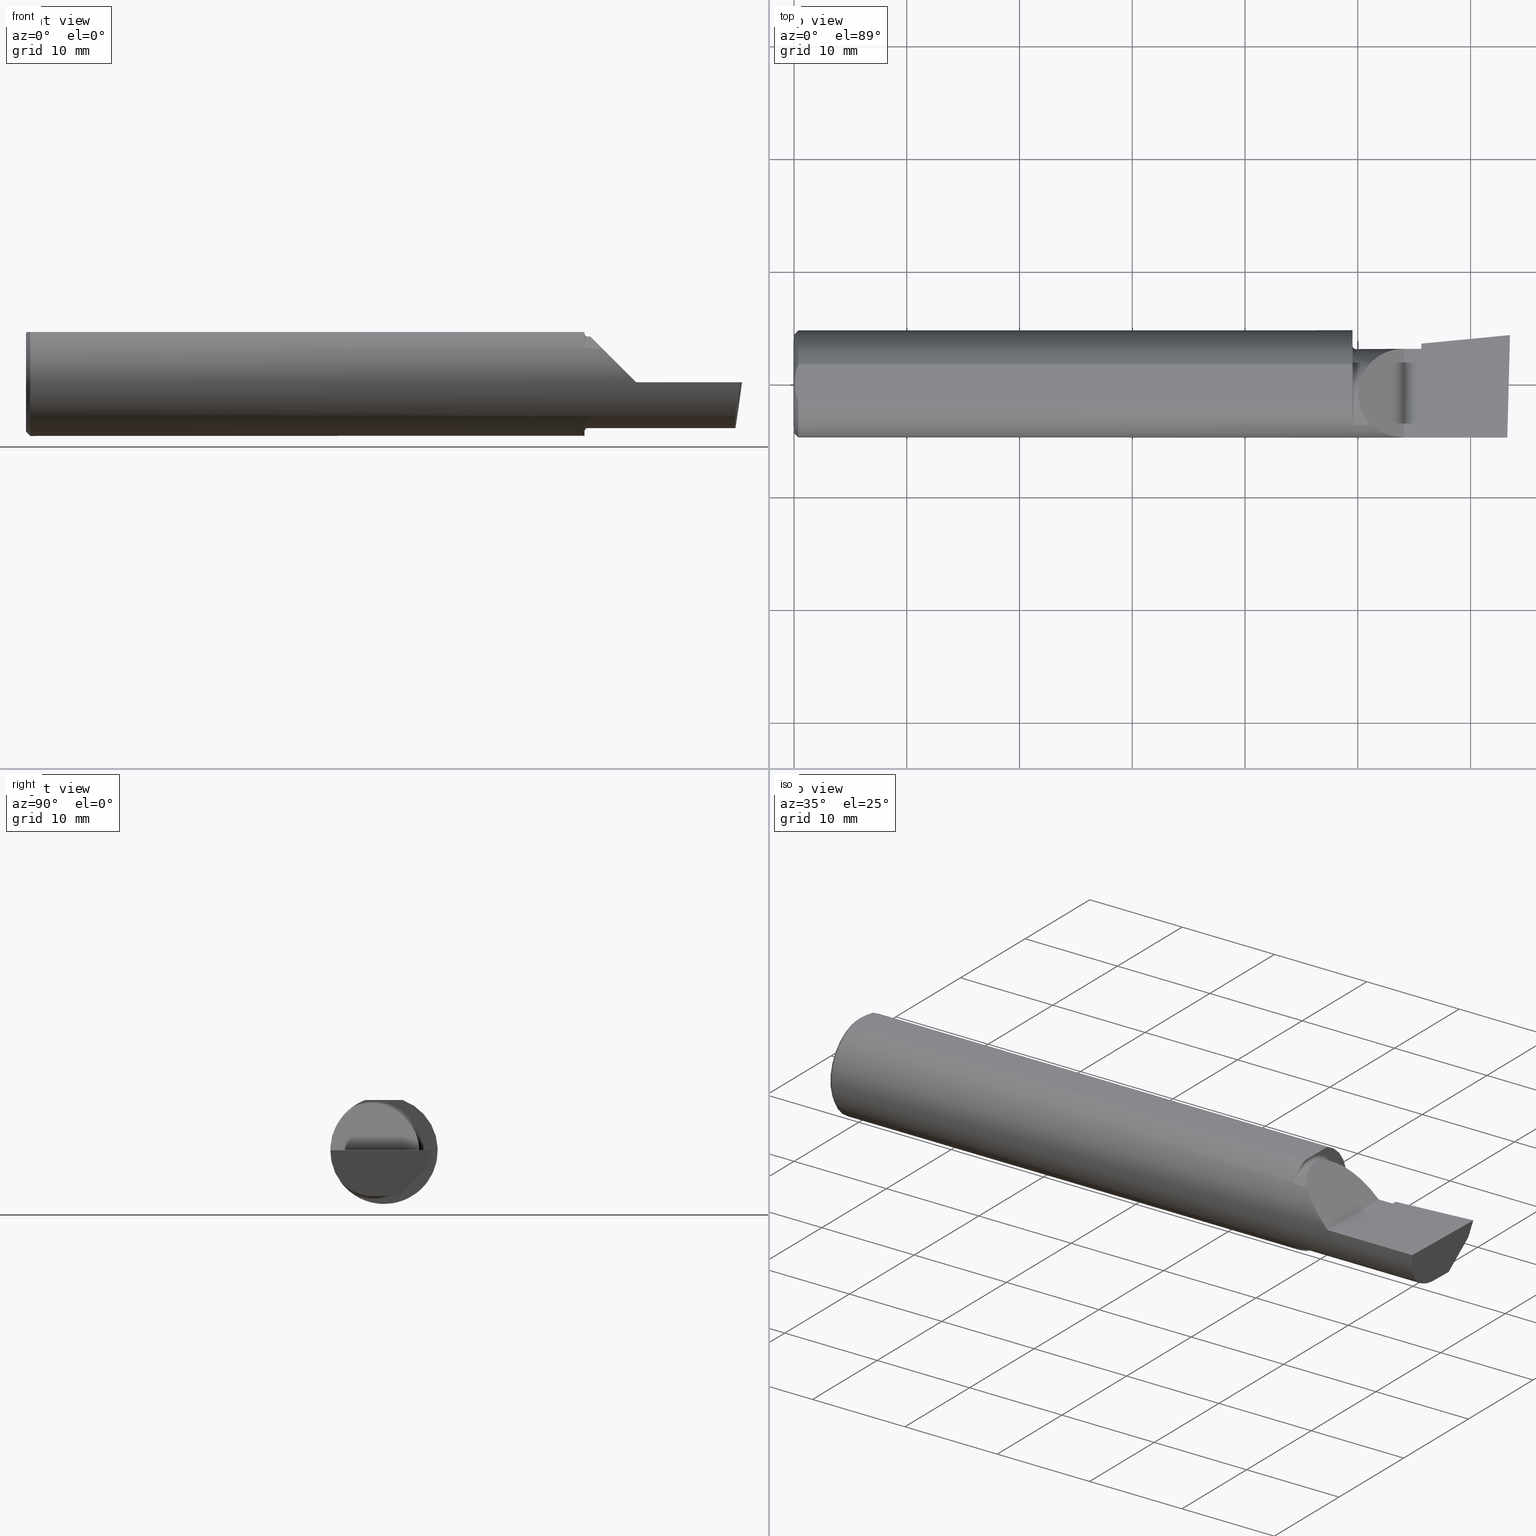
[diagram: canonical four-view strip — front | top / right | iso, engineering-drawing reading convention]
A machine part, canonical four-view strip (front | top / right | iso — engineering-drawing reading convention). The complete STEP part file that produces these views, byte-faithful:
ISO-10303-21;
HEADER;
FILE_DESCRIPTION (( 'STEP AP203' ),
    '1' );
FILE_NAME ('217546-B360500.STEP',
    '2024-04-26T22:36:43',
    ( '' ),
    ( '' ),
    'SwSTEP 2.0',
    'SolidWorks 2022',
    '' );
FILE_SCHEMA (( 'CONFIG_CONTROL_DESIGN' ));
ENDSEC;

DATA;
#1 = LINE ( 'NONE', #406, #442 ) ;
#2 = EDGE_CURVE ( 'NONE', #441, #163, #179, .T. ) ;
#3 = ORIENTED_EDGE ( 'NONE', *, *, #236, .F. ) ;
#4 = DIRECTION ( 'NONE',  ( -1.000000000000000000, 6.829619984160658046E-18, -0.000000000000000000 ) ) ;
#5 = CARTESIAN_POINT ( 'NONE',  ( 1.956674049009441196, -0.1431412424162808172, 0.1208797671938522250 ) ) ;
#6 = ORIENTED_EDGE ( 'NONE', *, *, #377, .F. ) ;
#7 = CARTESIAN_POINT ( 'NONE',  ( 2.480648201915109929, -0.1728409665178088084, -0.08432347972837160588 ) ) ;
#8 = EDGE_CURVE ( 'NONE', #611, #407, #512, .T. ) ;
#9 = VECTOR ( 'NONE', #414, 39.37007874015748143 ) ;
#10 = CARTESIAN_POINT ( 'NONE',  ( 1.949999999999999956, -0.1013606951871662831, -0.1575627873933891920 ) ) ;
#11 = COORDINATED_UNIVERSAL_TIME_OFFSET ( 8, 0, .BEHIND. ) ;
#12 = FACE_OUTER_BOUND ( 'NONE', #310, .T. ) ;
#13 = B_SPLINE_CURVE_WITH_KNOTS ( 'NONE', 3,
 ( #14, #109, #63, #590, #550, #113 ),
 .UNSPECIFIED., .F., .F.,
 ( 4, 2, 4 ),
 ( 0.003480013901590607410, 0.004330767971208083697, 0.005181522040825559984 ),
 .UNSPECIFIED. ) ;
#14 = CARTESIAN_POINT ( 'NONE',  ( 0.003000000000000218638, 2.334609556160449697E-17, 0.1753499999999999781 ) ) ;
#15 = ORIENTED_EDGE ( 'NONE', *, *, #554, .T. ) ;
#16 = CONICAL_SURFACE ( 'NONE', #552, 0.1873499999999999888, 0.7853981633974602694 ) ;
#17 = AXIS2_PLACEMENT_3D ( 'NONE', #87, #518, #274 ) ;
#18 = CARTESIAN_POINT ( 'NONE',  ( 1.959999999999999964, -0.1454917112299468074, -0.1180346748349050262 ) ) ;
#19 = VERTEX_POINT ( 'NONE', #82 ) ;
#20 = CARTESIAN_POINT ( 'NONE',  ( 0.000000000000000000, -0.06597272163553657975, 0.1753499999999999781 ) ) ;
#21 = PRODUCT_DEFINITION_SHAPE ( 'NONE', 'NONE',  #371 ) ;
#22 = CARTESIAN_POINT ( 'NONE',  ( 2.491169618080469217, 0.05430702260361122691, -0.1600499999999999701 ) ) ;
#23 = DIRECTION ( 'NONE',  ( 1.000000000000000000, -6.829619984160658046E-18, 0.000000000000000000 ) ) ;
#24 = CARTESIAN_POINT ( 'NONE',  ( 2.488992440003207296, -0.2497117568972554158, 6.943408617627042702E-17 ) ) ;
#25 = VECTOR ( 'NONE', #75, 39.37007874015748854 ) ;
#26 = VECTOR ( 'NONE', #321, 39.37007874015748143 ) ;
#27 = CARTESIAN_POINT ( 'NONE',  ( 2.190000000000000391, -0.2500000000000000555, 1.003418815229743348E-16 ) ) ;
#28 = LINE ( 'NONE', #22, #25 ) ;
#29 = FACE_OUTER_BOUND ( 'NONE', #42, .T. ) ;
#30 = DIRECTION ( 'NONE',  ( 0.000000000000000000, 0.000000000000000000, 1.000000000000000000 ) ) ;
#31 = EDGE_LOOP ( 'NONE', ( #238, #564, #476, #458, #3, #97 ) ) ;
#32 =( BOUNDED_CURVE ( )  B_SPLINE_CURVE ( 3, ( #594, #7, #56, #157 ),
 .UNSPECIFIED., .F., .T. ) 
 B_SPLINE_CURVE_WITH_KNOTS ( ( 4, 4 ),
 ( 0.6791649766273023525, 1.360746882514499045 ),
 .UNSPECIFIED. ) 
 CURVE ( )  GEOMETRIC_REPRESENTATION_ITEM ( )  RATIONAL_B_SPLINE_CURVE ( ( 1.000000000000000000, 0.9616603987079550553, 0.9616603987079550553, 1.000000000000000000 ) ) 
 REPRESENTATION_ITEM ( '' )  );
#33 = DIRECTION ( 'NONE',  ( -1.000000000000000000, 0.000000000000000000, 1.033731667140896077E-16 ) ) ;
#34 = DIRECTION ( 'NONE',  ( -1.000000000000000000, 6.829619984160658046E-18, -0.000000000000000000 ) ) ;
#35 = VERTEX_POINT ( 'NONE', #614 ) ;
#36 = AXIS2_PLACEMENT_3D ( 'NONE', #48, #234, #291 ) ;
#37 = CARTESIAN_POINT ( 'NONE',  ( 3.377502344341257155E-32, -0.1873499999999999610, 3.267291166268304703E-16 ) ) ;
#38 = EDGE_CURVE ( 'NONE', #441, #389, #466, .T. ) ;
#39 = ORIENTED_EDGE ( 'NONE', *, *, #193, .F. ) ;
#40 = APPROVAL_DATE_TIME ( #279, #219 ) ;
#41 = CARTESIAN_POINT ( 'NONE',  ( 1.957580800664965981, -0.1442412736056273570, 0.1195608849622518677 ) ) ;
#42 = EDGE_LOOP ( 'NONE', ( #549, #306 ) ) ;
#43 = CARTESIAN_POINT ( 'NONE',  ( 2.190000000000000391, 0.1408003950587628228, 0.000000000000000000 ) ) ;
#44 = CARTESIAN_POINT ( 'NONE',  ( 1.957921033727478610, -0.1445976381173499636, 0.1191292621734211382 ) ) ;
#45 = ORIENTED_EDGE ( 'NONE', *, *, #377, .T. ) ;
#46 = DIRECTION ( 'NONE',  ( -6.829619984160658046E-18, -1.000000000000000000, 0.000000000000000000 ) ) ;
#47 = CIRCLE ( 'NONE', #411, 0.1723499999999996424 ) ;
#48 = CARTESIAN_POINT ( 'NONE',  ( 2.509953961983671267, 0.1716084575252020683, -6.829619984160658046E-17 ) ) ;
#49 = APPROVAL_PERSON_ORGANIZATION ( #250, #320, #304 ) ;
#50 = ORIENTED_EDGE ( 'NONE', *, *, #193, .T. ) ;
#51 = CARTESIAN_POINT ( 'NONE',  ( 0.003000000000000218638, 2.334609556160449697E-17, 0.1753499999999999781 ) ) ;
#52 = FACE_OUTER_BOUND ( 'NONE', #151, .T. ) ;
#53 = EDGE_CURVE ( 'NONE', #376, #611, #272, .T. ) ;
#54 = VERTEX_POINT ( 'NONE', #369 ) ;
#55 = CARTESIAN_POINT ( 'NONE',  ( 1.952152469637250753, -0.1294082664154924123, -0.1355718222394685091 ) ) ;
#56 = CARTESIAN_POINT ( 'NONE',  ( 2.485293537526806151, -0.1873500000000000998, -0.04340998088356409768 ) ) ;
#57 = MANIFOLD_SOLID_BREP ( 'Extrude7', #266 ) ;
#58 = VECTOR ( 'NONE', #366, 39.37007874015748854 ) ;
#59 = LOCAL_TIME ( 15, 36, 43.00000000000000000, #11 ) ;
#60 = ADVANCED_FACE ( 'NONE', ( #364 ), #557, .T. ) ;
#61 = EDGE_CURVE ( 'NONE', #432, #407, #422, .T. ) ;
#62 = CALENDAR_DATE ( 2024, 26, 4 ) ;
#63 = CARTESIAN_POINT ( 'NONE',  ( 0.004115035183746292881, 0.02255629470626744487, 0.1753499999999999781 ) ) ;
#64 = COORDINATED_UNIVERSAL_TIME_OFFSET ( 8, 0, .BEHIND. ) ;
#65 = LINE ( 'NONE', #400, #383 ) ;
#66 = ORIENTED_EDGE ( 'NONE', *, *, #147, .T. ) ;
#67 = DIRECTION ( 'NONE',  ( 0.000000000000000000, 1.000000000000000000, 0.000000000000000000 ) ) ;
#68 = EDGE_CURVE ( 'NONE', #567, #322, #418, .T. ) ;
#69 = EDGE_LOOP ( 'NONE', ( #367, #628, #582, #273, #419, #615, #316, #103, #467, #226 ) ) ;
#70 = AXIS2_PLACEMENT_3D ( 'NONE', #307, #562, #319 ) ;
#71 = APPROVAL_PERSON_ORGANIZATION ( #568, #219, #98 ) ;
#72 = CARTESIAN_POINT ( 'NONE',  ( 2.011965325165093965, -0.1454917112299471127, 0.1180346748349047070 ) ) ;
#73 = VERTEX_POINT ( 'NONE', #506 ) ;
#74 = DIRECTION ( 'NONE',  ( 0.1219104985253354756, 0.000000000000000000, 0.9925410975618612630 ) ) ;
#75 = DIRECTION ( 'NONE',  ( -0.9953961983671800740, -0.09584575252021031166, 0.000000000000000000 ) ) ;
#76 = DIRECTION ( 'NONE',  ( 0.000000000000000000, 1.000000000000000000, -1.438723400918613551E-16 ) ) ;
#77 = DIRECTION ( 'NONE',  ( 0.000000000000000000, -1.000000000000000000, 0.000000000000000000 ) ) ;
#78 = AXIS2_PLACEMENT_3D ( 'NONE', #541, #105, #208 ) ;
#79 = AXIS2_PLACEMENT_3D ( 'NONE', #122, #312, #74 ) ;
#80 = ADVANCED_FACE ( 'NONE', ( #609 ), #182, .F. ) ;
#81 = CARTESIAN_POINT ( 'NONE',  ( 2.190000000000000391, 0.1408003950587675135, 3.244069492476312449E-16 ) ) ;
#82 = CARTESIAN_POINT ( 'NONE',  ( 2.492127980275578469, 0.1514633278254541304, -0.05999999999999999084 ) ) ;
#83 = ORIENTED_EDGE ( 'NONE', *, *, #488, .F. ) ;
#84 = CARTESIAN_POINT ( 'NONE',  ( 2.500000000000000000, -0.2500000000000000555, 6.829619984160658046E-17 ) ) ;
#85 = CARTESIAN_POINT ( 'NONE',  ( 2.190000000000000391, 0.1039332780936034484, -0.07900565447499380278 ) ) ;
#86 = ORIENTED_EDGE ( 'NONE', *, *, #308, .T. ) ;
#87 = CARTESIAN_POINT ( 'NONE',  ( 0.000000000000000000, 0.000000000000000000, 0.000000000000000000 ) ) ;
#88 = EDGE_CURVE ( 'NONE', #19, #196, #607, .T. ) ;
#89 = CARTESIAN_POINT ( 'NONE',  ( 2.189999999999999947, -0.03740000000000000269, 0.000000000000000000 ) ) ;
#90 = ORIENTED_EDGE ( 'NONE', *, *, #469, .F. ) ;
#91 = VECTOR ( 'NONE', #294, 39.37007874015748143 ) ;
#92 = CARTESIAN_POINT ( 'NONE',  ( 1.950493306168247898, -0.1180879943980265856, 0.1458023451353280819 ) ) ;
#93 = ORIENTED_EDGE ( 'NONE', *, *, #348, .T. ) ;
#94 =( LENGTH_UNIT ( ) NAMED_UNIT ( * ) SI_UNIT ( $, .METRE. ) );
#95 = EDGE_CURVE ( 'NONE', #483, #196, #599, .T. ) ;
#96 = CARTESIAN_POINT ( 'NONE',  ( 2.045676520271627385, -0.1728409665178088639, 0.08432347972837128669 ) ) ;
#97 = ORIENTED_EDGE ( 'NONE', *, *, #546, .F. ) ;
#98 = APPROVAL_ROLE ( '' ) ;
#99 = DIRECTION ( 'NONE',  ( -1.000000000000000000, -0.000000000000000000, -0.000000000000000000 ) ) ;
#100 = ORIENTED_EDGE ( 'NONE', *, *, #489, .T. ) ;
#101 = AXIS2_PLACEMENT_3D ( 'NONE', #89, #409, #225 ) ;
#102 = CARTESIAN_POINT ( 'NONE',  ( 1.952845212421890464, -0.1330145888620364591, 0.1320338710448774322 ) ) ;
#103 = ORIENTED_EDGE ( 'NONE', *, *, #424, .F. ) ;
#104 = LINE ( 'NONE', #37, #360 ) ;
#105 = DIRECTION ( 'NONE',  ( -1.000000000000000000, -0.000000000000000000, -0.000000000000000000 ) ) ;
#106 = EDGE_CURVE ( 'NONE', #432, #455, #603, .T. ) ;
#107 = CARTESIAN_POINT ( 'NONE',  ( 1.959335809113330384, -0.1454917112299467796, -0.1180346748349050123 ) ) ;
#108 = CIRCLE ( 'NONE', #510, 0.1873499999999999888 ) ;
#109 = CARTESIAN_POINT ( 'NONE',  ( 0.003000000000000169632, 0.01127363201155560934, 0.1753499999999999781 ) ) ;
#110 = VERTEX_POINT ( 'NONE', #136 ) ;
#111 = PERSON ( 'UNSPECIFIED', 'UNSPECIFIED', 'UNSPECIFIED', ('UNSPECIFIED'), ('UNSPECIFIED'), ('UNSPECIFIED') ) ;
#112 = DATE_TIME_ROLE ( 'creation_date' ) ;
#113 = CARTESIAN_POINT ( 'NONE',  ( 0.01499999999999999424, 0.06597272163553663527, 0.1753499999999999781 ) ) ;
#114 = VERTEX_POINT ( 'NONE', #173 ) ;
#115 = FACE_OUTER_BOUND ( 'NONE', #31, .T. ) ;
#116 = EDGE_LOOP ( 'NONE', ( #50, #66, #591, #597 ) ) ;
#117 = AXIS2_PLACEMENT_3D ( 'NONE', #242, #622, #185 ) ;
#118 = TOROIDAL_SURFACE ( 'NONE', #627, 0.1700499999999998679, 0.009999999999999944697 ) ;
#119 = PRODUCT ( '217546-B360500', '217546-B360500', '', ( #135 ) ) ;
#120 = EDGE_CURVE ( 'NONE', #376, #455, #28, .T. ) ;
#121 = CC_DESIGN_DATE_AND_TIME_ASSIGNMENT ( #155, #540, ( #289 ) ) ;
#122 = CARTESIAN_POINT ( 'NONE',  ( 2.472657716785286119, -0.1026153499216721915, -0.1643501480114534230 ) ) ;
#123 = CARTESIAN_POINT ( 'NONE',  ( 0.01499999999999999424, 0.000000000000000000, -0.1873499999999999888 ) ) ;
#124 = CARTESIAN_POINT ( 'NONE',  ( 2.129999999999999893, -0.2500000000000000555, 1.065442715258197396E-16 ) ) ;
#125 = DIRECTION ( 'NONE',  ( 0.000000000000000000, -1.000000000000000000, 0.000000000000000000 ) ) ;
#126 = VERTEX_POINT ( 'NONE', #470 ) ;
#127 = CARTESIAN_POINT ( 'NONE',  ( 0.01499999999999999424, 2.294375778202566330E-17, 0.1873499999999999888 ) ) ;
#128 = CARTESIAN_POINT ( 'NONE',  ( 0.000000000000000000, 0.000000000000000000, 0.000000000000000000 ) ) ;
#129 = AXIS2_PLACEMENT_3D ( 'NONE', #388, #343, #539 ) ;
#130 = VERTEX_POINT ( 'NONE', #176 ) ;
#131 = CARTESIAN_POINT ( 'NONE',  ( 2.477223734188808368, -0.1454917112299468074, -0.1180346748349050540 ) ) ;
#132 = DIRECTION ( 'NONE',  ( -0.7071067811865513475, 0.000000000000000000, 0.7071067811865436870 ) ) ;
#133 = ORIENTED_EDGE ( 'NONE', *, *, #546, .T. ) ;
#134 = EDGE_CURVE ( 'NONE', #110, #209, #251, .T. ) ;
#135 = MECHANICAL_CONTEXT ( 'NONE', #398, 'mechanical' ) ;
#136 = CARTESIAN_POINT ( 'NONE',  ( 1.949999999999999956, -0.1013606951871662831, 0.1575627873933891920 ) ) ;
#137 = ORIENTED_EDGE ( 'NONE', *, *, #391, .F. ) ;
#138 = CARTESIAN_POINT ( 'NONE',  ( 2.474646882977779683, -0.1156304438478840263, -0.1453804992321579559 ) ) ;
#139 = CC_DESIGN_PERSON_AND_ORGANIZATION_ASSIGNMENT ( #233, #429, ( #371 ) ) ;
#140 = VERTEX_POINT ( 'NONE', #228 ) ;
#141 = DIRECTION ( 'NONE',  ( 0.000000000000000000, 0.000000000000000000, -1.000000000000000000 ) ) ;
#142 = B_SPLINE_CURVE_WITH_KNOTS ( 'NONE', 3,
 ( #386, #285, #241, #338, #197, #51 ),
 .UNSPECIFIED., .F., .F.,
 ( 4, 2, 4 ),
 ( 0.001779942938356815062, 0.002629978419973711019, 0.003480013901590607410 ),
 .UNSPECIFIED. ) ;
#143 = ORIENTED_EDGE ( 'NONE', *, *, #88, .F. ) ;
#144 = CC_DESIGN_PERSON_AND_ORGANIZATION_ASSIGNMENT ( #295, #453, ( #423 ) ) ;
#145 =( CONVERSION_BASED_UNIT ( 'INCH', #188 ) LENGTH_UNIT ( ) NAMED_UNIT ( #372 ) );
#146 = CARTESIAN_POINT ( 'NONE',  ( 2.477223734188808368, -0.1454917112299468074, -0.1180346748349050540 ) ) ;
#147 = EDGE_CURVE ( 'NONE', #140, #35, #574, .T. ) ;
#148 = VERTEX_POINT ( 'NONE', #263 ) ;
#149 = CARTESIAN_POINT ( 'NONE',  ( 0.000000000000000000, 0.000000000000000000, 0.000000000000000000 ) ) ;
#150 = CARTESIAN_POINT ( 'NONE',  ( 2.500000000000033307, 0.1706500000000319150, 9.332649030152475688E-14 ) ) ;
#151 = EDGE_LOOP ( 'NONE', ( #143, #537, #287, #93 ) ) ;
#152 = VECTOR ( 'NONE', #265, 39.37007874015748143 ) ;
#153 = CARTESIAN_POINT ( 'NONE',  ( 1.950000000000000178, -0.1100056335683317482, 0.1520014681335478124 ) ) ;
#154 = ORGANIZATION ( 'UNSPECIFIED', 'UNSPECIFIED', '' ) ;
#155 = DATE_AND_TIME ( #401, #601 ) ;
#156 = EDGE_CURVE ( 'NONE', #376, #19, #555, .T. ) ;
#157 = CARTESIAN_POINT ( 'NONE',  ( 2.490625440078237940, -0.1873499999999999888, 6.926778495256704501E-17 ) ) ;
#158 = CARTESIAN_POINT ( 'NONE',  ( 0.000000000000000000, 0.000000000000000000, -0.1723499999999996424 ) ) ;
#159 = CARTESIAN_POINT ( 'NONE',  ( 1.957909242887170276, -0.1445870704379418892, -0.1191421054870956259 ) ) ;
#160 = VECTOR ( 'NONE', #257, 39.37007874015748143 ) ;
#161 = ORIENTED_EDGE ( 'NONE', *, *, #2, .F. ) ;
#162 = PLANE ( 'NONE',  #435 ) ;
#163 = VERTEX_POINT ( 'NONE', #221 ) ;
#164 = PLANE ( 'NONE',  #277 ) ;
#165 = ORIENTED_EDGE ( 'NONE', *, *, #488, .T. ) ;
#166 = EDGE_CURVE ( 'NONE', #163, #441, #47, .T. ) ;
#167 = CC_DESIGN_PERSON_AND_ORGANIZATION_ASSIGNMENT ( #298, #342, ( #423 ) ) ;
#168 = CARTESIAN_POINT ( 'NONE',  ( 2.190000000000000391, 0.1039332780936034484, -0.07900565447499380278 ) ) ;
#169 = CARTESIAN_POINT ( 'NONE',  ( 1.959999999999999964, -0.03740000000000000269, 0.000000000000000000 ) ) ;
#170 = AXIS2_PLACEMENT_3D ( 'NONE', #365, #420, #368 ) ;
#171 = DIRECTION ( 'NONE',  ( 0.000000000000000000, 0.000000000000000000, -1.000000000000000000 ) ) ;
#172 = ADVANCED_FACE ( 'NONE', ( #390 ), #195, .F. ) ;
#173 = CARTESIAN_POINT ( 'NONE',  ( 2.011965325165093965, -0.1454917112299471127, 0.1180346748349047070 ) ) ;
#174 = ADVANCED_BREP_SHAPE_REPRESENTATION ( '217546-B360500', ( #57, #17 ), #253 ) ;
#175 = PLANE ( 'NONE',  #170 ) ;
#176 = CARTESIAN_POINT ( 'NONE',  ( 2.129999999999999893, 0.1226499999999999535, 1.065442715258197396E-16 ) ) ;
#177 = DIRECTION ( 'NONE',  ( 0.000000000000000000, 1.000000000000000000, 0.000000000000000000 ) ) ;
#178 = DIRECTION ( 'NONE',  ( -0.02617694830791441468, -0.9996573249755561497, 0.000000000000000000 ) ) ;
#179 = CIRCLE ( 'NONE', #536, 0.1723499999999996424 ) ;
#180 = ORIENTED_EDGE ( 'NONE', *, *, #538, .F. ) ;
#181 = FACE_OUTER_BOUND ( 'NONE', #486, .T. ) ;
#182 = PLANE ( 'NONE',  #218 ) ;
#183 = ORIENTED_EDGE ( 'NONE', *, *, #156, .F. ) ;
#184 =( BOUNDED_CURVE ( )  B_SPLINE_CURVE ( 3, ( #72, #505, #456, #553 ),
 .UNSPECIFIED., .F., .F. ) 
 B_SPLINE_CURVE_WITH_KNOTS ( ( 4, 4 ),
 ( 5.541729662751381014, 7.853981633974483678 ),
 .UNSPECIFIED. ) 
 CURVE ( )  GEOMETRIC_REPRESENTATION_ITEM ( )  RATIONAL_B_SPLINE_CURVE ( ( 1.000000000000000000, 0.6019254882129702056, 0.6019254882129702056, 1.000000000000000000 ) ) 
 REPRESENTATION_ITEM ( '' )  );
#185 = DIRECTION ( 'NONE',  ( 6.829619984160658046E-18, 1.000000000000000000, 0.000000000000000000 ) ) ;
#186 = ORIENTED_EDGE ( 'NONE', *, *, #469, .T. ) ;
#187 = APPROVAL ( #248, 'UNSPECIFIED' ) ;
#188 = LENGTH_MEASURE_WITH_UNIT ( LENGTH_MEASURE( 0.02539999999999999897 ), #94 );
#189 = DIRECTION ( 'NONE',  ( 0.000000000000000000, 0.000000000000000000, -1.000000000000000000 ) ) ;
#190 = ORIENTED_EDGE ( 'NONE', *, *, #210, .F. ) ;
#191 = VECTOR ( 'NONE', #260, 39.37007874015748143 ) ;
#192 = CYLINDRICAL_SURFACE ( 'NONE', #129, 0.1600499999999999146 ) ;
#193 = EDGE_CURVE ( 'NONE', #110, #140, #415, .T. ) ;
#194 = ORIENTED_EDGE ( 'NONE', *, *, #424, .T. ) ;
#195 = PLANE ( 'NONE',  #202 ) ;
#196 = VERTEX_POINT ( 'NONE', #150 ) ;
#197 = CARTESIAN_POINT ( 'NONE',  ( 0.003000000000000172667, -0.01126410975715121283, 0.1753500000000000059 ) ) ;
#198 = DIRECTION ( 'NONE',  ( -4.755568962650852797E-18, -0.6963153109074925462, -0.7177360153954948085 ) ) ;
#199 = ADVANCED_FACE ( 'NONE', ( #52 ), #245, .T. ) ;
#200 = ORIENTED_EDGE ( 'NONE', *, *, #621, .T. ) ;
#201 = APPROVAL_DATE_TIME ( #207, #320 ) ;
#202 = AXIS2_PLACEMENT_3D ( 'NONE', #393, #335, #528 ) ;
#203 = CARTESIAN_POINT ( 'NONE',  ( 2.075000000000000178, -0.1454917112299468074, -0.1180346748349050540 ) ) ;
#204 = CARTESIAN_POINT ( 'NONE',  ( 1.954992410154055005, -0.1399157128067682609, -0.1246181391956566603 ) ) ;
#205 = ADVANCED_FACE ( 'NONE', ( #485 ), #192, .T. ) ;
#206 = DIRECTION ( 'NONE',  ( 0.000000000000000000, -1.000000000000000000, -1.776356839400250465E-15 ) ) ;
#207 = DATE_AND_TIME ( #293, #575 ) ;
#208 = DIRECTION ( 'NONE',  ( 0.000000000000000000, 0.000000000000000000, 1.000000000000000000 ) ) ;
#209 = VERTEX_POINT ( 'NONE', #431 ) ;
#210 = EDGE_CURVE ( 'NONE', #334, #54, #280, .T. ) ;
#211 = CARTESIAN_POINT ( 'NONE',  ( 1.956664569472228443, -0.1431262185210689653, -0.1208975608635233512 ) ) ;
#212 = ORIENTED_EDGE ( 'NONE', *, *, #281, .T. ) ;
#213 = DIRECTION ( 'NONE',  ( 1.000000000000000000, -6.829619984160658046E-18, 0.000000000000000000 ) ) ;
#214 = DIRECTION ( 'NONE',  ( -1.000000000000000000, -0.000000000000000000, -0.000000000000000000 ) ) ;
#215 = EDGE_CURVE ( 'NONE', #483, #282, #104, .T. ) ;
#216 = DIRECTION ( 'NONE',  ( -4.755568962650852797E-18, -0.6963153109074925462, -0.7177360153954948085 ) ) ;
#217 = DIRECTION ( 'NONE',  ( 0.000000000000000000, 0.000000000000000000, 1.000000000000000000 ) ) ;
#218 = AXIS2_PLACEMENT_3D ( 'NONE', #464, #563, #132 ) ;
#219 = APPROVAL ( #472, 'UNSPECIFIED' ) ;
#220 = DIRECTION ( 'NONE',  ( 1.000000000000000000, 0.000000000000000000, 0.000000000000000000 ) ) ;
#221 = CARTESIAN_POINT ( 'NONE',  ( 0.000000000000000000, 2.202527268266512578E-17, 0.1723499999999996424 ) ) ;
#222 = PLANE ( 'NONE',  #361 ) ;
#223 =( BOUNDED_CURVE ( )  B_SPLINE_CURVE ( 3, ( #333, #535, #96, #283 ),
 .UNSPECIFIED., .F., .T. ) 
 B_SPLINE_CURVE_WITH_KNOTS ( ( 4, 4 ),
 ( 4.712388980384689674, 5.393970886271882925 ),
 .UNSPECIFIED. ) 
 CURVE ( )  GEOMETRIC_REPRESENTATION_ITEM ( )  RATIONAL_B_SPLINE_CURVE ( ( 1.000000000000000000, 0.9616603987079553884, 0.9616603987079553884, 1.000000000000000000 ) ) 
 REPRESENTATION_ITEM ( '' )  );
#224 = ADVANCED_FACE ( 'NONE', ( #427 ), #617, .T. ) ;
#225 = DIRECTION ( 'NONE',  ( 0.000000000000000000, -1.000000000000000000, 0.000000000000000000 ) ) ;
#226 = ORIENTED_EDGE ( 'NONE', *, *, #8, .F. ) ;
#227 = CARTESIAN_POINT ( 'NONE',  ( 1.949999999999999956, 0.000000000000000000, 0.000000000000000000 ) ) ;
#228 = CARTESIAN_POINT ( 'NONE',  ( 1.959999999999999964, -0.1454917112299468629, 0.1180346748349049985 ) ) ;
#229 = ORIENTED_EDGE ( 'NONE', *, *, #38, .F. ) ;
#230 = LINE ( 'NONE', #616, #240 ) ;
#231 = DIRECTION ( 'NONE',  ( -1.000000000000000000, -0.000000000000000000, -0.000000000000000000 ) ) ;
#232 = ORIENTED_EDGE ( 'NONE', *, *, #301, .F. ) ;
#233 = PERSON_AND_ORGANIZATION ( #111, #154 ) ;
#234 = DIRECTION ( 'NONE',  ( -0.09165774897393340337, 0.9519021185660613282, -0.2923717047227306631 ) ) ;
#235 = ORIENTED_EDGE ( 'NONE', *, *, #166, .F. ) ;
#236 = EDGE_CURVE ( 'NONE', #130, #73, #580, .T. ) ;
#237 = DIRECTION ( 'NONE',  ( 0.000000000000000000, 0.000000000000000000, 1.000000000000000000 ) ) ;
#238 = ORIENTED_EDGE ( 'NONE', *, *, #215, .F. ) ;
#239 = AXIS2_PLACEMENT_3D ( 'NONE', #227, #463, #177 ) ;
#240 = VECTOR ( 'NONE', #332, 39.37007874015748854 ) ;
#241 = CARTESIAN_POINT ( 'NONE',  ( 0.008227791779583789808, -0.04447712204611815878, 0.1753499999999999781 ) ) ;
#242 = CARTESIAN_POINT ( 'NONE',  ( 1.949999999999999956, 0.1326499999999999069, 0.000000000000000000 ) ) ;
#243 = EDGE_LOOP ( 'NONE', ( #235, #165, #618, #521, #229 ) ) ;
#244 =( NAMED_UNIT ( * ) SI_UNIT ( $, .STERADIAN. ) SOLID_ANGLE_UNIT ( ) );
#245 = PLANE ( 'NONE',  #36 ) ;
#246 = EDGE_CURVE ( 'NONE', #502, #611, #571, .T. ) ;
#247 = VERTEX_POINT ( 'NONE', #434 ) ;
#248 = APPROVAL_STATUS ( 'not_yet_approved' ) ;
#249 = CARTESIAN_POINT ( 'NONE',  ( 1.949999999999999512, -0.1099295023601655485, -0.1520504436074704147 ) ) ;
#250 = PERSON_AND_ORGANIZATION ( #111, #154 ) ;
#251 = CIRCLE ( 'NONE', #309, 0.1700499999999998679 ) ;
#252 = DIRECTION ( 'NONE',  ( 0.000000000000000000, 0.000000000000000000, 1.000000000000000000 ) ) ;
#253 =( GEOMETRIC_REPRESENTATION_CONTEXT ( 3 ) GLOBAL_UNCERTAINTY_ASSIGNED_CONTEXT ( ( #519 ) ) GLOBAL_UNIT_ASSIGNED_CONTEXT ( ( #145, #378, #244 ) ) REPRESENTATION_CONTEXT ( 'NONE', 'WORKASPACE' ) );
#254 = CARTESIAN_POINT ( 'NONE',  ( 1.954404192622241521, -0.1382376748423449486, -0.1264781021717281684 ) ) ;
#255 = CARTESIAN_POINT ( 'NONE',  ( 1.950483388365423565, -0.1180160148311106827, -0.1458664675357412566 ) ) ;
#256 = ORIENTED_EDGE ( 'NONE', *, *, #120, .T. ) ;
#257 = DIRECTION ( 'NONE',  ( -1.000000000000000000, 6.829619984160658046E-18, -0.000000000000000000 ) ) ;
#258 = VECTOR ( 'NONE', #509, 39.37007874015748143 ) ;
#259 = ORIENTED_EDGE ( 'NONE', *, *, #8, .T. ) ;
#260 = DIRECTION ( 'NONE',  ( -1.000000000000000000, -0.000000000000000000, -0.000000000000000000 ) ) ;
#261 = ORIENTED_EDGE ( 'NONE', *, *, #88, .T. ) ;
#262 = CARTESIAN_POINT ( 'NONE',  ( 2.075000000000000178, -0.1454917112299468074, 0.1180346748349050540 ) ) ;
#263 = CARTESIAN_POINT ( 'NONE',  ( 0.01499999999999999424, 0.06597272163553663527, 0.1753499999999999781 ) ) ;
#264 = PLANE ( 'NONE',  #79 ) ;
#265 = DIRECTION ( 'NONE',  ( -6.829619984160658046E-18, -1.000000000000000000, 1.438723400918613551E-16 ) ) ;
#266 = CLOSED_SHELL ( 'NONE', ( #572, #604, #450, #327, #60, #514, #529, #80, #592, #271, #619, #224, #205, #199, #497, #172, #566 ) ) ;
#267 = LINE ( 'NONE', #262, #524 ) ;
#268 = CARTESIAN_POINT ( 'NONE',  ( 2.474910817315467693, -0.03674301662998679524, -0.1600499999999999701 ) ) ;
#269 = ORIENTED_EDGE ( 'NONE', *, *, #610, .F. ) ;
#270 = DIRECTION ( 'NONE',  ( -0.000000000000000000, 1.000000000000000000, -0.000000000000000000 ) ) ;
#271 = ADVANCED_FACE ( 'NONE', ( #339 ), #16, .T. ) ;
#272 = LINE ( 'NONE', #268, #299 ) ;
#273 = ORIENTED_EDGE ( 'NONE', *, *, #500, .T. ) ;
#274 = DIRECTION ( 'NONE',  ( 1.000000000000000000, 0.000000000000000000, 0.000000000000000000 ) ) ;
#275 = DESIGN_CONTEXT ( 'detailed design', #313, 'design' ) ;
#276 = DIRECTION ( 'NONE',  ( 0.02617694830791441468, 0.9996573249755561497, -2.665804247647986508E-18 ) ) ;
#277 = AXIS2_PLACEMENT_3D ( 'NONE', #347, #397, #302 ) ;
#278 = VECTOR ( 'NONE', #465, 39.37007874015748143 ) ;
#279 = DATE_AND_TIME ( #326, #475 ) ;
#280 = LINE ( 'NONE', #382, #612 ) ;
#281 = EDGE_CURVE ( 'NONE', #282, #114, #223, .T. ) ;
#282 = VERTEX_POINT ( 'NONE', #626 ) ;
#283 = CARTESIAN_POINT ( 'NONE',  ( 2.011965325165093965, -0.1454917112299471127, 0.1180346748349047070 ) ) ;
#284 = ORIENTED_EDGE ( 'NONE', *, *, #53, .F. ) ;
#285 = CARTESIAN_POINT ( 'NONE',  ( 0.01128414053810044941, -0.05542038647445821781, 0.1753499999999999781 ) ) ;
#286 = CARTESIAN_POINT ( 'NONE',  ( 1.958780002058964076, -0.1452129146512415314, 0.1183784924451695281 ) ) ;
#287 = ORIENTED_EDGE ( 'NONE', *, *, #308, .F. ) ;
#288 = VECTOR ( 'NONE', #577, 39.37007874015748143 ) ;
#289 = SECURITY_CLASSIFICATION ( '', '', #446 ) ;
#290 = FACE_OUTER_BOUND ( 'NONE', #116, .T. ) ;
#291 = DIRECTION ( 'NONE',  ( 0.000000000000000000, 0.2936076258024064023, 0.9559260233253795702 ) ) ;
#292 = EDGE_LOOP ( 'NONE', ( #180, #545, #133 ) ) ;
#293 = CALENDAR_DATE ( 2024, 26, 4 ) ;
#294 = DIRECTION ( 'NONE',  ( 0.9953961983671787417, 0.09584575252022464742, -1.028972571603813720E-16 ) ) ;
#295 = PERSON_AND_ORGANIZATION ( #111, #154 ) ;
#296 = DIRECTION ( 'NONE',  ( -1.000000000000000000, -0.000000000000000000, -0.000000000000000000 ) ) ;
#297 = AXIS2_PLACEMENT_3D ( 'NONE', #169, #362, #77 ) ;
#298 = PERSON_AND_ORGANIZATION ( #111, #154 ) ;
#299 = VECTOR ( 'NONE', #178, 39.37007874015748854 ) ;
#300 = CARTESIAN_POINT ( 'NONE',  ( 1.956208682939483356, -0.1423361566194925321, -0.1218275716760981731 ) ) ;
#301 = EDGE_CURVE ( 'NONE', #407, #455, #1, .T. ) ;
#302 = DIRECTION ( 'NONE',  ( 1.000000000000000000, 0.000000000000000000, 0.000000000000000000 ) ) ;
#303 = ORIENTED_EDGE ( 'NONE', *, *, #301, .T. ) ;
#304 = APPROVAL_ROLE ( '' ) ;
#305 = CARTESIAN_POINT ( 'NONE',  ( 2.190000000000000391, 0.02530768673263080262, -0.1600499999999999701 ) ) ;
#306 = ORIENTED_EDGE ( 'NONE', *, *, #166, .T. ) ;
#307 = CARTESIAN_POINT ( 'NONE',  ( 2.189999999999999947, -0.03740000000000000269, 0.000000000000000000 ) ) ;
#308 = EDGE_CURVE ( 'NONE', #498, #334, #65, .T. ) ;
#309 = AXIS2_PLACEMENT_3D ( 'NONE', #324, #34, #125 ) ;
#310 = EDGE_LOOP ( 'NONE', ( #478, #425, #232 ) ) ;
#311 = CARTESIAN_POINT ( 'NONE',  ( 0.000000000000000000, 0.000000000000000000, 0.000000000000000000 ) ) ;
#312 = DIRECTION ( 'NONE',  ( -0.9922060308645402893, 0.02598182930473410396, 0.1218693434051999064 ) ) ;
#313 = APPLICATION_CONTEXT ( 'configuration controlled 3d designs of mechanical parts and assemblies' ) ;
#314 = DIRECTION ( 'NONE',  ( 0.1053106618242473369, 0.6976485211320153645, 0.7086580314005131997 ) ) ;
#315 = LINE ( 'NONE', #124, #384 ) ;
#316 = ORIENTED_EDGE ( 'NONE', *, *, #507, .T. ) ;
#317 = AXIS2_PLACEMENT_3D ( 'NONE', #608, #602, #171 ) ;
#318 = ORIENTED_EDGE ( 'NONE', *, *, #457, .F. ) ;
#319 = DIRECTION ( 'NONE',  ( 0.000000000000000000, -1.000000000000000000, 0.000000000000000000 ) ) ;
#320 = APPROVAL ( #448, 'UNSPECIFIED' ) ;
#321 = DIRECTION ( 'NONE',  ( 0.7071067811865390240, 0.000000000000000000, -0.7071067811865560104 ) ) ;
#322 = VERTEX_POINT ( 'NONE', #496 ) ;
#323 = PERSON_AND_ORGANIZATION_ROLE ( 'design_owner' ) ;
#324 = CARTESIAN_POINT ( 'NONE',  ( 1.949999999999999956, -0.03740000000000000269, 0.000000000000000000 ) ) ;
#325 = ORIENTED_EDGE ( 'NONE', *, *, #500, .F. ) ;
#326 = CALENDAR_DATE ( 2024, 26, 4 ) ;
#327 = ADVANCED_FACE ( 'NONE', ( #596 ), #164, .F. ) ;
#328 = CARTESIAN_POINT ( 'NONE',  ( 2.473833329693936101, -0.07789060880782669449, -0.1600499999999999423 ) ) ;
#329 = VECTOR ( 'NONE', #565, 39.37007874015748854 ) ;
#330 = APPROVAL_PERSON_ORGANIZATION ( #444, #187, #587 ) ;
#331 = ORIENTED_EDGE ( 'NONE', *, *, #344, .F. ) ;
#332 = DIRECTION ( 'NONE',  ( -0.9953961983671800740, -0.09584575252021031166, 0.000000000000000000 ) ) ;
#333 = CARTESIAN_POINT ( 'NONE',  ( 2.129999999999999893, -0.1873499999999999888, 1.065442715258197396E-16 ) ) ;
#334 = VERTEX_POINT ( 'NONE', #491 ) ;
#335 = DIRECTION ( 'NONE',  ( -1.000000000000000000, 6.829619984160658046E-18, 0.000000000000000000 ) ) ;
#336 = EDGE_CURVE ( 'NONE', #502, #35, #357, .T. ) ;
#337 = ORIENTED_EDGE ( 'NONE', *, *, #53, .T. ) ;
#338 = CARTESIAN_POINT ( 'NONE',  ( 0.004093196532652216939, -0.02240707710020816909, 0.1753499999999999504 ) ) ;
#339 = FACE_OUTER_BOUND ( 'NONE', #375, .T. ) ;
#340 = ORIENTED_EDGE ( 'NONE', *, *, #356, .F. ) ;
#341 = CIRCLE ( 'NONE', #462, 0.1600499999999999146 ) ;
#342 = PERSON_AND_ORGANIZATION_ROLE ( 'design_supplier' ) ;
#343 = DIRECTION ( 'NONE',  ( -1.000000000000000000, 6.829619984160658046E-18, -0.000000000000000000 ) ) ;
#344 = EDGE_CURVE ( 'NONE', #126, #148, #13, .T. ) ;
#345 = CARTESIAN_POINT ( 'NONE',  ( 0.01499999999999999424, 0.000000000000000000, -0.1873499999999999888 ) ) ;
#346 = PERSON_AND_ORGANIZATION_ROLE ( 'classification_officer' ) ;
#347 = CARTESIAN_POINT ( 'NONE',  ( 2.500000000000000000, -0.03740000000000000269, -0.1600499999999999701 ) ) ;
#348 = EDGE_CURVE ( 'NONE', #498, #196, #454, .T. ) ;
#349 = CIRCLE ( 'NONE', #239, 0.1873499999999999888 ) ;
#350 = CC_DESIGN_APPROVAL ( #219, ( #371 ) ) ;
#351 = CARTESIAN_POINT ( 'NONE',  ( 0.01499999999999999424, 0.000000000000000000, 0.000000000000000000 ) ) ;
#352 = ORIENTED_EDGE ( 'NONE', *, *, #134, .T. ) ;
#353 = DIRECTION ( 'NONE',  ( -1.000000000000000000, 6.829619984160658046E-18, 0.000000000000000000 ) ) ;
#354 = B_SPLINE_CURVE_WITH_KNOTS ( 'NONE', 3,
 ( #18, #107, #449, #159, #487, #211, #300, #204, #254, #586, #55, #255, #249, #10 ),
 .UNSPECIFIED., .F., .F.,
 ( 4, 2, 2, 2, 2, 2, 4 ),
 ( 1.967643395654151782E-07, 5.001319782656704827E-05, 9.982963131356867846E-05, 0.0001994624982875719253, 0.0003987282322355774973, 0.0007972597001315919482, 0.001594322635923620850 ),
 .UNSPECIFIED. ) ;
#355 = ORIENTED_EDGE ( 'NONE', *, *, #391, .T. ) ;
#356 = EDGE_CURVE ( 'NONE', #35, #209, #354, .T. ) ;
#357 = LINE ( 'NONE', #203, #160 ) ;
#358 = EDGE_LOOP ( 'NONE', ( #551, #530, #100, #352 ) ) ;
#359 = FACE_OUTER_BOUND ( 'NONE', #560, .T. ) ;
#360 = VECTOR ( 'NONE', #231, 39.37007874015748143 ) ;
#361 = AXIS2_PLACEMENT_3D ( 'NONE', #149, #426, #141 ) ;
#362 = DIRECTION ( 'NONE',  ( -1.000000000000000000, 6.829619984160658046E-18, -0.000000000000000000 ) ) ;
#363 = LINE ( 'NONE', #27, #278 ) ;
#364 = FACE_OUTER_BOUND ( 'NONE', #392, .T. ) ;
#365 = CARTESIAN_POINT ( 'NONE',  ( 2.511712141217646632, 0.1533490680423130470, -0.05999999999999999084 ) ) ;
#366 = DIRECTION ( 'NONE',  ( -4.755568962650852797E-18, -0.6963153109074925462, -0.7177360153954948085 ) ) ;
#367 = ORIENTED_EDGE ( 'NONE', *, *, #246, .F. ) ;
#368 = DIRECTION ( 'NONE',  ( 0.000000000000000000, 0.6963153109074924352, 0.7177360153954949196 ) ) ;
#369 = CARTESIAN_POINT ( 'NONE',  ( 2.190000000000000391, 0.09838681685089170625, -0.08472274115904399050 ) ) ;
#370 = AXIS2_PLACEMENT_3D ( 'NONE', #43, #522, #439 ) ;
#371 = PRODUCT_DEFINITION ( 'UNKNOWN', '', #423, #275 ) ;
#372 = DIMENSIONAL_EXPONENTS ( 1.000000000000000000, 0.000000000000000000, 0.000000000000000000, 0.000000000000000000, 0.000000000000000000, 0.000000000000000000, 0.000000000000000000 ) ;
#373 = ORIENTED_EDGE ( 'NONE', *, *, #156, .T. ) ;
#374 = PLANE ( 'NONE',  #482 ) ;
#375 = EDGE_LOOP ( 'NONE', ( #83, #161, #436, #355, #200 ) ) ;
#376 = VERTEX_POINT ( 'NONE', #399 ) ;
#377 = EDGE_CURVE ( 'NONE', #502, #483, #32, .T. ) ;
#378 =( NAMED_UNIT ( * ) PLANE_ANGLE_UNIT ( ) SI_UNIT ( $, .RADIAN. ) );
#379 = CARTESIAN_POINT ( 'NONE',  ( 1.093080678464946361E-18, 0.1226499999999998841, 3.267291166268304703E-16 ) ) ;
#380 = ORIENTED_EDGE ( 'NONE', *, *, #405, .F. ) ;
#381 = FACE_OUTER_BOUND ( 'NONE', #570, .T. ) ;
#382 = CARTESIAN_POINT ( 'NONE',  ( 2.190000000000000391, 0.1039332780936034484, -0.07900565447499380278 ) ) ;
#383 = VECTOR ( 'NONE', #544, 39.37007874015748854 ) ;
#384 = VECTOR ( 'NONE', #270, 39.37007874015748143 ) ;
#385 = ORIENTED_EDGE ( 'NONE', *, *, #489, .F. ) ;
#386 = CARTESIAN_POINT ( 'NONE',  ( 0.01499999999999997863, -0.06597272163553657975, 0.1753499999999999781 ) ) ;
#387 = CC_DESIGN_PERSON_AND_ORGANIZATION_ASSIGNMENT ( #490, #346, ( #289 ) ) ;
#388 = CARTESIAN_POINT ( 'NONE',  ( 0.000000000000000000, -0.03739999999999998881, 0.000000000000000000 ) ) ;
#389 = VERTEX_POINT ( 'NONE', #345 ) ;
#390 = FACE_OUTER_BOUND ( 'NONE', #428, .T. ) ;
#391 = EDGE_CURVE ( 'NONE', #389, #247, #600, .T. ) ;
#392 = EDGE_LOOP ( 'NONE', ( #533, #45, #578, #212, #325, #39, #385, #186, #137, #380, #576, #438, #340 ) ) ;
#393 = CARTESIAN_POINT ( 'NONE',  ( 2.190000000000000391, 0.1408003950587628228, 0.000000000000000000 ) ) ;
#394 = ORIENTED_EDGE ( 'NONE', *, *, #210, .T. ) ;
#395 = VECTOR ( 'NONE', #314, 39.37007874015748854 ) ;
#396 = COORDINATED_UNIVERSAL_TIME_OFFSET ( 8, 0, .BEHIND. ) ;
#397 = DIRECTION ( 'NONE',  ( -0.000000000000000000, 0.000000000000000000, 1.000000000000000000 ) ) ;
#398 = APPLICATION_CONTEXT ( 'configuration controlled 3d designs of mechanical parts and assemblies' ) ;
#399 = CARTESIAN_POINT ( 'NONE',  ( 2.477259974483429161, 0.05296767626088543651, -0.1600499999999999701 ) ) ;
#400 = CARTESIAN_POINT ( 'NONE',  ( 2.190000000000000391, 0.1375075152821363944, -0.01072093908174519966 ) ) ;
#401 = CALENDAR_DATE ( 2024, 26, 4 ) ;
#402 = CC_DESIGN_APPROVAL ( #187, ( #289 ) ) ;
#403 = CARTESIAN_POINT ( 'NONE',  ( 2.190000000000000391, 0.1408003950587628228, 0.000000000000000000 ) ) ;
#404 = ORIENTED_EDGE ( 'NONE', *, *, #68, .F. ) ;
#405 = EDGE_CURVE ( 'NONE', #148, #389, #108, .T. ) ;
#406 = CARTESIAN_POINT ( 'NONE',  ( 2.190000000000000391, -0.03740000000000000269, -0.1600499999999999701 ) ) ;
#407 = VERTEX_POINT ( 'NONE', #542 ) ;
#408 = CARTESIAN_POINT ( 'NONE',  ( 2.500000000000000000, 0.2373500000000000332, 0.1753499999999999504 ) ) ;
#409 = DIRECTION ( 'NONE',  ( -1.000000000000000000, 6.829619984160658046E-18, -0.000000000000000000 ) ) ;
#410 = CARTESIAN_POINT ( 'NONE',  ( 0.000000000000000000, 0.06597272163553663527, 0.1753499999999999781 ) ) ;
#411 = AXIS2_PLACEMENT_3D ( 'NONE', #128, #99, #237 ) ;
#412 = CC_DESIGN_APPROVAL ( #320, ( #423 ) ) ;
#413 = CARTESIAN_POINT ( 'NONE',  ( 2.500188977433833060, 0.1711105994646693607, 0.001440373173035025328 ) ) ;
#414 = DIRECTION ( 'NONE',  ( 0.7071067811865390240, 8.659560562355036396E-17, 0.7071067811865560104 ) ) ;
#415 = B_SPLINE_CURVE_WITH_KNOTS ( 'NONE', 3,
 ( #473, #153, #92, #573, #102, #440, #477, #479, #5, #41, #44, #286, #569, #583 ),
 .UNSPECIFIED., .F., .F.,
 ( 4, 2, 2, 2, 2, 2, 4 ),
 ( 0.0006605532644857166694, 0.001446564801351206322, 0.001839570569783951365, 0.002036073454000323669, 0.002134324896108512858, 0.002183450617162612656, 0.002232576338216711587 ),
 .UNSPECIFIED. ) ;
#416 = CARTESIAN_POINT ( 'NONE',  ( 1.949999999999999956, 0.2373500000000000332, 0.1753499999999999504 ) ) ;
#417 = PLANE ( 'NONE',  #561 ) ;
#418 = LINE ( 'NONE', #416, #152 ) ;
#419 = ORIENTED_EDGE ( 'NONE', *, *, #538, .T. ) ;
#420 = DIRECTION ( 'NONE',  ( -0.06894566448119622548, 0.7160281025913035613, -0.6946583704589933683 ) ) ;
#421 = DIRECTION ( 'NONE',  ( -1.000000000000000000, -0.000000000000000000, -0.000000000000000000 ) ) ;
#422 = CIRCLE ( 'NONE', #101, 0.1600499999999999146 ) ;
#423 = PRODUCT_DEFINITION_FORMATION_WITH_SPECIFIED_SOURCE ( 'ANY', '', #119, .NOT_KNOWN. ) ;
#424 = EDGE_CURVE ( 'NONE', #432, #54, #341, .T. ) ;
#425 = ORIENTED_EDGE ( 'NONE', *, *, #106, .T. ) ;
#426 = DIRECTION ( 'NONE',  ( 1.000000000000000000, 0.000000000000000000, 0.000000000000000000 ) ) ;
#427 = FACE_OUTER_BOUND ( 'NONE', #358, .T. ) ;
#428 = EDGE_LOOP ( 'NONE', ( #194, #15 ) ) ;
#429 = PERSON_AND_ORGANIZATION_ROLE ( 'creator' ) ;
#430 = CC_DESIGN_DATE_AND_TIME_ASSIGNMENT ( #547, #112, ( #371 ) ) ;
#431 = CARTESIAN_POINT ( 'NONE',  ( 1.949999999999999956, -0.1013606951871662831, -0.1575627873933891920 ) ) ;
#432 = VERTEX_POINT ( 'NONE', #447 ) ;
#433 = APPLICATION_PROTOCOL_DEFINITION ( 'international standard', 'config_control_design', 1994, #398 ) ;
#434 = CARTESIAN_POINT ( 'NONE',  ( 0.01499999999999997863, -0.06597272163553657975, 0.1753499999999999781 ) ) ;
#435 = AXIS2_PLACEMENT_3D ( 'NONE', #403, #353, #548 ) ;
#436 = ORIENTED_EDGE ( 'NONE', *, *, #38, .T. ) ;
#437 = DIRECTION ( 'NONE',  ( 1.000000000000000000, 0.000000000000000000, 0.000000000000000000 ) ) ;
#438 = ORIENTED_EDGE ( 'NONE', *, *, #461, .F. ) ;
#439 = DIRECTION ( 'NONE',  ( -6.829619984160658046E-18, -1.000000000000000000, 0.000000000000000000 ) ) ;
#440 = CARTESIAN_POINT ( 'NONE',  ( 1.954402240695038762, -0.1382337250035448051, 0.1264828452200231212 ) ) ;
#441 = VERTEX_POINT ( 'NONE', #158 ) ;
#442 = VECTOR ( 'NONE', #67, 39.37007874015748143 ) ;
#443 = VECTOR ( 'NONE', #216, 39.37007874015748854 ) ;
#444 = PERSON_AND_ORGANIZATION ( #111, #154 ) ;
#445 = DIRECTION ( 'NONE',  ( 1.000000000000000000, -6.829619984160658046E-18, 0.000000000000000000 ) ) ;
#446 = SECURITY_CLASSIFICATION_LEVEL ( 'unclassified' ) ;
#447 = CARTESIAN_POINT ( 'NONE',  ( 2.190000000000000391, 0.05139684578702544832, -0.1331582617725058648 ) ) ;
#448 = APPROVAL_STATUS ( 'not_yet_approved' ) ;
#449 = CARTESIAN_POINT ( 'NONE',  ( 1.958770022656896481, -0.1452078353828892276, -0.1183847404910799567 ) ) ;
#450 = ADVANCED_FACE ( 'NONE', ( #12 ), #162, .T. ) ;
#451 = ORIENTED_EDGE ( 'NONE', *, *, #95, .F. ) ;
#452 = VECTOR ( 'NONE', #276, 39.37007874015748854 ) ;
#453 = PERSON_AND_ORGANIZATION_ROLE ( 'creator' ) ;
#454 = LINE ( 'NONE', #494, #91 ) ;
#455 = VERTEX_POINT ( 'NONE', #305 ) ;
#456 = CARTESIAN_POINT ( 'NONE',  ( 1.967758842172327105, 0.1226500000000000229, 0.1622411578276707345 ) ) ;
#457 = EDGE_CURVE ( 'NONE', #148, #567, #501, .T. ) ;
#458 = ORIENTED_EDGE ( 'NONE', *, *, #581, .F. ) ;
#459 = CARTESIAN_POINT ( 'NONE',  ( 1.949999999999999956, 0.06597272163553663527, 0.1753499999999999781 ) ) ;
#460 = CARTESIAN_POINT ( 'NONE',  ( 2.500000000000000000, -0.03740000000000000269, -0.1600499999999999701 ) ) ;
#461 = EDGE_CURVE ( 'NONE', #209, #567, #492, .T. ) ;
#462 = AXIS2_PLACEMENT_3D ( 'NONE', #588, #445, #206 ) ;
#463 = DIRECTION ( 'NONE',  ( 1.000000000000000000, -6.829619984160658046E-18, 0.000000000000000000 ) ) ;
#464 = CARTESIAN_POINT ( 'NONE',  ( 2.129999999999999893, -0.2500000000000000555, 1.065442715258197396E-16 ) ) ;
#465 = DIRECTION ( 'NONE',  ( 6.829619984160658816E-18, 1.000000000000000000, -7.059994452165177242E-34 ) ) ;
#466 = LINE ( 'NONE', #123, #26 ) ;
#467 = ORIENTED_EDGE ( 'NONE', *, *, #61, .T. ) ;
#468 = FACE_OUTER_BOUND ( 'NONE', #480, .T. ) ;
#469 = EDGE_CURVE ( 'NONE', #322, #247, #606, .T. ) ;
#470 = CARTESIAN_POINT ( 'NONE',  ( 0.003000000000000218638, 2.334609556160449697E-17, 0.1753499999999999781 ) ) ;
#471 = EDGE_LOOP ( 'NONE', ( #517, #337, #259, #303 ) ) ;
#472 = APPROVAL_STATUS ( 'not_yet_approved' ) ;
#473 = CARTESIAN_POINT ( 'NONE',  ( 1.949999999999999956, -0.1013606951871662831, 0.1575627873933891920 ) ) ;
#474 = VECTOR ( 'NONE', #220, 39.37007874015748143 ) ;
#475 = LOCAL_TIME ( 15, 36, 43.00000000000000000, #579 ) ;
#476 = ORIENTED_EDGE ( 'NONE', *, *, #348, .F. ) ;
#477 = CARTESIAN_POINT ( 'NONE',  ( 1.954997648858496362, -0.1399294360413336213, 0.1246027428089592215 ) ) ;
#478 = ORIENTED_EDGE ( 'NONE', *, *, #61, .F. ) ;
#479 = CARTESIAN_POINT ( 'NONE',  ( 1.956216587669450835, -0.1423502170013170864, 0.1218111458006543441 ) ) ;
#480 = EDGE_LOOP ( 'NONE', ( #183, #256, #513, #520, #190, #269 ) ) ;
#481 = PLANE ( 'NONE',  #370 ) ;
#482 = AXIS2_PLACEMENT_3D ( 'NONE', #408, #558, #76 ) ;
#483 = VERTEX_POINT ( 'NONE', #515 ) ;
#484 = CC_DESIGN_PERSON_AND_ORGANIZATION_ASSIGNMENT ( #531, #323, ( #119 ) ) ;
#485 = FACE_OUTER_BOUND ( 'NONE', #69, .T. ) ;
#486 = EDGE_LOOP ( 'NONE', ( #404, #318, #331, #595, #90 ) ) ;
#487 = CARTESIAN_POINT ( 'NONE',  ( 1.957567572594821392, -0.1442269357022588627, -0.1195781817710028921 ) ) ;
#488 = EDGE_CURVE ( 'NONE', #163, #126, #613, .T. ) ;
#489 = EDGE_CURVE ( 'NONE', #322, #110, #349, .T. ) ;
#490 = PERSON_AND_ORGANIZATION ( #111, #154 ) ;
#491 = CARTESIAN_POINT ( 'NONE',  ( 2.190000000000000391, 0.1223717121708782218, -0.05999999999999999778 ) ) ;
#492 = CIRCLE ( 'NONE', #625, 0.1873499999999999888 ) ;
#493 = CONICAL_SURFACE ( 'NONE', #317, 0.1873499999999999888, 0.7853981633974602694 ) ;
#494 = CARTESIAN_POINT ( 'NONE',  ( 0.3393181374772709646, -0.03739999999999999575, 2.916527262322781592E-16 ) ) ;
#495 = APPROVAL_DATE_TIME ( #589, #187 ) ;
#496 = CARTESIAN_POINT ( 'NONE',  ( 1.949999999999999956, -0.06597272163553659363, 0.1753499999999999781 ) ) ;
#497 = ADVANCED_FACE ( 'NONE', ( #468 ), #175, .T. ) ;
#498 = VERTEX_POINT ( 'NONE', #81 ) ;
#499 = SHAPE_DEFINITION_REPRESENTATION ( #21, #174 ) ;
#500 = EDGE_CURVE ( 'NONE', #140, #114, #267, .T. ) ;
#501 = LINE ( 'NONE', #410, #474 ) ;
#502 = VERTEX_POINT ( 'NONE', #131 ) ;
#503 = DIRECTION ( 'NONE',  ( -1.033731667140896077E-16, 0.000000000000000000, -1.000000000000000000 ) ) ;
#504 = ORIENTED_EDGE ( 'NONE', *, *, #581, .T. ) ;
#505 = CARTESIAN_POINT ( 'NONE',  ( 1.902393788885674120, -0.02584108761840332724, 0.2276062111143229705 ) ) ;
#506 = CARTESIAN_POINT ( 'NONE',  ( 2.189999999999999947, 0.1226499999999998980, 3.267291166268305196E-16 ) ) ;
#507 = EDGE_CURVE ( 'NONE', #73, #54, #593, .T. ) ;
#508 = DIRECTION ( 'NONE',  ( 0.000000000000000000, 1.000000000000000000, 0.000000000000000000 ) ) ;
#509 = DIRECTION ( 'NONE',  ( -1.000000000000000000, 5.691349986800549142E-18, -0.000000000000000000 ) ) ;
#510 = AXIS2_PLACEMENT_3D ( 'NONE', #351, #296, #252 ) ;
#511 = FACE_OUTER_BOUND ( 'NONE', #243, .T. ) ;
#512 = LINE ( 'NONE', #460, #258 ) ;
#513 = ORIENTED_EDGE ( 'NONE', *, *, #106, .F. ) ;
#514 = ADVANCED_FACE ( 'NONE', ( #181 ), #374, .F. ) ;
#515 = CARTESIAN_POINT ( 'NONE',  ( 2.490625440078237940, -0.1873499999999999888, 6.926778495256704501E-17 ) ) ;
#516 = CARTESIAN_POINT ( 'NONE',  ( 0.000000000000000000, 0.000000000000000000, 0.000000000000000000 ) ) ;
#517 = ORIENTED_EDGE ( 'NONE', *, *, #120, .F. ) ;
#518 = DIRECTION ( 'NONE',  ( 0.000000000000000000, 0.000000000000000000, 1.000000000000000000 ) ) ;
#519 = UNCERTAINTY_MEASURE_WITH_UNIT (LENGTH_MEASURE( 1.000000000000000082E-05 ), #145, 'distance_accuracy_value', 'NONE');
#520 = ORIENTED_EDGE ( 'NONE', *, *, #554, .F. ) ;
#521 = ORIENTED_EDGE ( 'NONE', *, *, #405, .T. ) ;
#522 = DIRECTION ( 'NONE',  ( -1.000000000000000000, 6.829619984160658046E-18, 0.000000000000000000 ) ) ;
#523 = CARTESIAN_POINT ( 'NONE',  ( 0.01499999999999999424, 0.000000000000000000, 0.000000000000000000 ) ) ;
#524 = VECTOR ( 'NONE', #213, 39.37007874015748143 ) ;
#525 = LOCAL_TIME ( 15, 36, 43.00000000000000000, #620 ) ;
#526 = ORIENTED_EDGE ( 'NONE', *, *, #246, .T. ) ;
#527 = CARTESIAN_POINT ( 'NONE',  ( 2.474893613600468445, -0.03740000000000000269, -0.1600499999999999701 ) ) ;
#528 = DIRECTION ( 'NONE',  ( -6.829619984160658046E-18, -1.000000000000000000, 0.000000000000000000 ) ) ;
#529 = ADVANCED_FACE ( 'NONE', ( #115 ), #417, .F. ) ;
#530 = ORIENTED_EDGE ( 'NONE', *, *, #68, .T. ) ;
#531 = PERSON_AND_ORGANIZATION ( #111, #154 ) ;
#532 = CARTESIAN_POINT ( 'NONE',  ( 2.474893613600468445, -0.03740000000000000269, -0.1600499999999999701 ) ) ;
#533 = ORIENTED_EDGE ( 'NONE', *, *, #336, .F. ) ;
#534 = CARTESIAN_POINT ( 'NONE',  ( 1.959999999999999964, -0.03739999999999997493, 0.000000000000000000 ) ) ;
#535 = CARTESIAN_POINT ( 'NONE',  ( 2.086590019116435268, -0.1873499999999999610, 0.04340998088356396584 ) ) ;
#536 = AXIS2_PLACEMENT_3D ( 'NONE', #311, #421, #30 ) ;
#537 = ORIENTED_EDGE ( 'NONE', *, *, #610, .T. ) ;
#538 = EDGE_CURVE ( 'NONE', #114, #130, #184, .T. ) ;
#539 = DIRECTION ( 'NONE',  ( -6.829619984160657276E-18, -1.000000000000000000, 0.000000000000000000 ) ) ;
#540 = DATE_TIME_ROLE ( 'classification_date' ) ;
#541 = CARTESIAN_POINT ( 'NONE',  ( 0.01499999999999999424, 0.000000000000000000, 0.000000000000000000 ) ) ;
#542 = CARTESIAN_POINT ( 'NONE',  ( 2.190000000000000391, -0.03740000000000000269, -0.1600499999999999701 ) ) ;
#543 = CC_DESIGN_SECURITY_CLASSIFICATION ( #289, ( #423 ) ) ;
#544 = DIRECTION ( 'NONE',  ( -2.005228508682078977E-18, -0.2936076258024064023, -0.9559260233253794592 ) ) ;
#545 = ORIENTED_EDGE ( 'NONE', *, *, #281, .F. ) ;
#546 = EDGE_CURVE ( 'NONE', #282, #130, #315, .T. ) ;
#547 = DATE_AND_TIME ( #585, #525 ) ;
#548 = DIRECTION ( 'NONE',  ( -6.829619984160658046E-18, -1.000000000000000000, 0.000000000000000000 ) ) ;
#549 = ORIENTED_EDGE ( 'NONE', *, *, #2, .T. ) ;
#550 = CARTESIAN_POINT ( 'NONE',  ( 0.01125230581755086272, 0.05532998191409922023, 0.1753500000000000059 ) ) ;
#551 = ORIENTED_EDGE ( 'NONE', *, *, #461, .T. ) ;
#552 = AXIS2_PLACEMENT_3D ( 'NONE', #523, #437, #189 ) ;
#553 = CARTESIAN_POINT ( 'NONE',  ( 2.129999999999999893, 0.1226499999999999535, 1.065442715258197396E-16 ) ) ;
#554 = EDGE_CURVE ( 'NONE', #54, #432, #598, .T. ) ;
#555 = LINE ( 'NONE', #559, #395 ) ;
#556 = CARTESIAN_POINT ( 'NONE',  ( 1.949999999999999956, 0.000000000000000000, 0.000000000000000000 ) ) ;
#557 = CYLINDRICAL_SURFACE ( 'NONE', #584, 0.1873499999999999888 ) ;
#558 = DIRECTION ( 'NONE',  ( 0.000000000000000000, -1.438723400918613551E-16, -1.000000000000000000 ) ) ;
#559 = CARTESIAN_POINT ( 'NONE',  ( 2.492483720199198505, 0.1538199878950242405, -0.05760614975163727558 ) ) ;
#560 = EDGE_LOOP ( 'NONE', ( #526, #284, #373, #261, #451, #6 ) ) ;
#561 = AXIS2_PLACEMENT_3D ( 'NONE', #84, #503, #33 ) ;
#562 = DIRECTION ( 'NONE',  ( -1.000000000000000000, 6.829619984160658046E-18, -0.000000000000000000 ) ) ;
#563 = DIRECTION ( 'NONE',  ( -0.7071067811865436870, 0.000000000000000000, -0.7071067811865513475 ) ) ;
#564 = ORIENTED_EDGE ( 'NONE', *, *, #95, .T. ) ;
#565 = DIRECTION ( 'NONE',  ( 0.1240019227989970080, 0.3022330132596679486, 0.9451342385281219505 ) ) ;
#566 = ADVANCED_FACE ( 'NONE', ( #359 ), #264, .F. ) ;
#567 = VERTEX_POINT ( 'NONE', #459 ) ;
#568 = PERSON_AND_ORGANIZATION ( #111, #154 ) ;
#569 = CARTESIAN_POINT ( 'NONE',  ( 1.959343186359710387, -0.1454917112302227256, 0.1180346748345668245 ) ) ;
#570 = EDGE_LOOP ( 'NONE', ( #504, #86, #394, #623 ) ) ;
#571 =( BOUNDED_CURVE ( )  B_SPLINE_CURVE ( 3, ( #146, #138, #328, #532 ),
 .UNSPECIFIED., .F., .F. ) 
 B_SPLINE_CURVE_WITH_KNOTS ( ( 4, 4 ),
 ( 5.751779107031781635, 6.493234751459984189 ),
 .UNSPECIFIED. ) 
 CURVE ( )  GEOMETRIC_REPRESENTATION_ITEM ( )  RATIONAL_B_SPLINE_CURVE ( ( 1.000000000000000000, 0.9547092712975350226, 0.9547092712975350226, 1.000000000000000000 ) ) 
 REPRESENTATION_ITEM ( '' )  );
#572 = ADVANCED_FACE ( 'NONE', ( #511 ), #493, .T. ) ;
#573 = CARTESIAN_POINT ( 'NONE',  ( 1.952149571221040825, -0.1293863363941686051, 0.1355911774285940841 ) ) ;
#574 = CIRCLE ( 'NONE', #297, 0.1600499999999999146 ) ;
#575 = LOCAL_TIME ( 15, 36, 43.00000000000000000, #64 ) ;
#576 = ORIENTED_EDGE ( 'NONE', *, *, #457, .T. ) ;
#577 = DIRECTION ( 'NONE',  ( 1.000000000000000000, -6.829619984160658046E-18, 0.000000000000000000 ) ) ;
#578 = ORIENTED_EDGE ( 'NONE', *, *, #215, .T. ) ;
#579 = COORDINATED_UNIVERSAL_TIME_OFFSET ( 8, 0, .BEHIND. ) ;
#580 = LINE ( 'NONE', #379, #288 ) ;
#581 = EDGE_CURVE ( 'NONE', #73, #498, #363, .T. ) ;
#582 = ORIENTED_EDGE ( 'NONE', *, *, #147, .F. ) ;
#583 = CARTESIAN_POINT ( 'NONE',  ( 1.959999999999999964, -0.1454917112299468629, 0.1180346748349049985 ) ) ;
#584 = AXIS2_PLACEMENT_3D ( 'NONE', #516, #214, #217 ) ;
#585 = CALENDAR_DATE ( 2024, 26, 4 ) ;
#586 = CARTESIAN_POINT ( 'NONE',  ( 1.952858161161656891, -0.1330631366558199247, -0.1319833113027347182 ) ) ;
#587 = APPROVAL_ROLE ( '' ) ;
#588 = CARTESIAN_POINT ( 'NONE',  ( 2.190000000000000391, -0.03740000000000000269, 0.000000000000000000 ) ) ;
#589 = DATE_AND_TIME ( #62, #59 ) ;
#590 = CARTESIAN_POINT ( 'NONE',  ( 0.008244775919947424855, 0.04453482769755855164, 0.1753499999999999504 ) ) ;
#591 = ORIENTED_EDGE ( 'NONE', *, *, #356, .T. ) ;
#592 = ADVANCED_FACE ( 'NONE', ( #29 ), #222, .F. ) ;
#593 = CIRCLE ( 'NONE', #70, 0.1600499999999999146 ) ;
#594 = CARTESIAN_POINT ( 'NONE',  ( 2.477223734188808368, -0.1454917112299468074, -0.1180346748349050540 ) ) ;
#595 = ORIENTED_EDGE ( 'NONE', *, *, #621, .F. ) ;
#596 = FACE_OUTER_BOUND ( 'NONE', #471, .T. ) ;
#597 = ORIENTED_EDGE ( 'NONE', *, *, #134, .F. ) ;
#598 = LINE ( 'NONE', #168, #443 ) ;
#599 = LINE ( 'NONE', #24, #452 ) ;
#600 = CIRCLE ( 'NONE', #78, 0.1873499999999999888 ) ;
#601 = LOCAL_TIME ( 15, 36, 43.00000000000000000, #396 ) ;
#602 = DIRECTION ( 'NONE',  ( 1.000000000000000000, 0.000000000000000000, 0.000000000000000000 ) ) ;
#603 = LINE ( 'NONE', #85, #58 ) ;
#604 = ADVANCED_FACE ( 'NONE', ( #381 ), #481, .T. ) ;
#605 = PRODUCT_RELATED_PRODUCT_CATEGORY ( 'detail', '', ( #119 ) ) ;
#606 = LINE ( 'NONE', #20, #191 ) ;
#607 = LINE ( 'NONE', #413, #329 ) ;
#608 = CARTESIAN_POINT ( 'NONE',  ( 0.01499999999999999424, 0.000000000000000000, 0.000000000000000000 ) ) ;
#609 = FACE_OUTER_BOUND ( 'NONE', #292, .T. ) ;
#610 = EDGE_CURVE ( 'NONE', #19, #334, #230, .T. ) ;
#611 = VERTEX_POINT ( 'NONE', #527 ) ;
#612 = VECTOR ( 'NONE', #198, 39.37007874015748854 ) ;
#613 = LINE ( 'NONE', #127, #9 ) ;
#614 = CARTESIAN_POINT ( 'NONE',  ( 1.959999999999999964, -0.1454917112299468074, -0.1180346748349050262 ) ) ;
#615 = ORIENTED_EDGE ( 'NONE', *, *, #236, .T. ) ;
#616 = CARTESIAN_POINT ( 'NONE',  ( 2.511712141217646632, 0.1533490680423130470, -0.05999999999999999084 ) ) ;
#617 = PLANE ( 'NONE',  #117 ) ;
#618 = ORIENTED_EDGE ( 'NONE', *, *, #344, .T. ) ;
#619 = ADVANCED_FACE ( 'NONE', ( #290 ), #118, .F. ) ;
#620 = COORDINATED_UNIVERSAL_TIME_OFFSET ( 8, 0, .BEHIND. ) ;
#621 = EDGE_CURVE ( 'NONE', #247, #126, #142, .T. ) ;
#622 = DIRECTION ( 'NONE',  ( 1.000000000000000000, -6.829619984160658046E-18, 0.000000000000000000 ) ) ;
#623 = ORIENTED_EDGE ( 'NONE', *, *, #507, .F. ) ;
#624 = APPLICATION_PROTOCOL_DEFINITION ( 'international standard', 'config_control_design', 1994, #313 ) ;
#625 = AXIS2_PLACEMENT_3D ( 'NONE', #556, #23, #508 ) ;
#626 = CARTESIAN_POINT ( 'NONE',  ( 2.129999999999999893, -0.1873499999999999888, 1.065442715258197396E-16 ) ) ;
#627 = AXIS2_PLACEMENT_3D ( 'NONE', #534, #4, #46 ) ;
#628 = ORIENTED_EDGE ( 'NONE', *, *, #336, .T. ) ;
ENDSEC;
END-ISO-10303-21;
